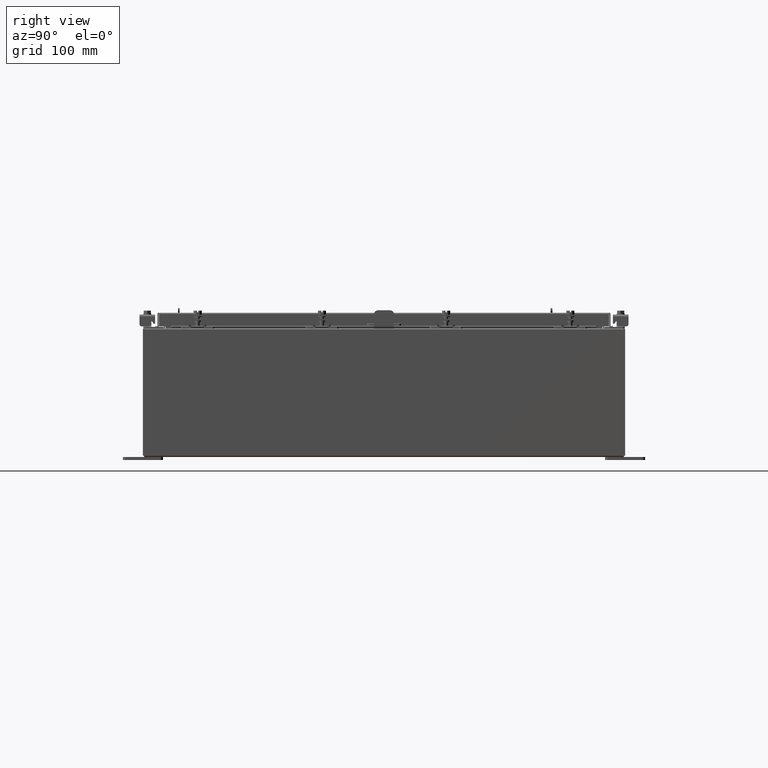
[diagram: clean part render]
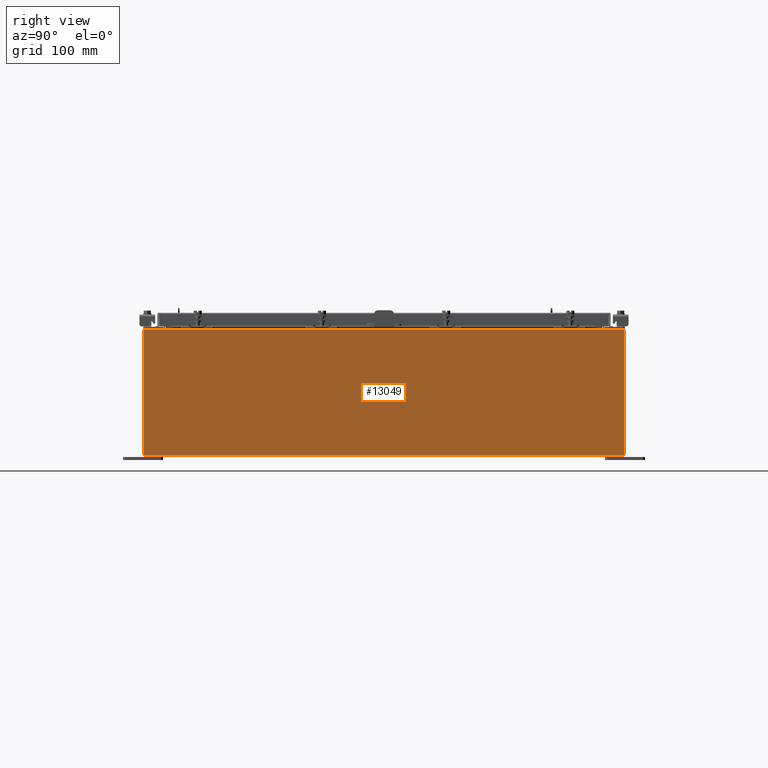
[diagram: same view with one face highlighted and labeled with its STEP entity id]
A machine part, right view. The second image highlights one B-rep face of the part: STEP entity #13049.
In plain terms, the highlighted planar face has unit normal (-1, 0, 0).
Its self-contained STEP definition (entity closure, byte-faithful):
#958 = DIRECTION ( 'NONE',  ( -0.0000000000000000000, -1.000000000000000000, -0.0000000000000000000 ) ) ;
#1259 = LINE ( 'NONE', #14122, #20576 ) ;
#2458 = DIRECTION ( 'NONE',  ( -0.0000000000000000000, -1.000000000000000000, -0.0000000000000000000 ) ) ;
#2667 = VERTEX_POINT ( 'NONE', #21736 ) ;
#2953 = DIRECTION ( 'NONE',  ( 3.584876173029202900E-015, 0.0000000000000000000, 1.000000000000000000 ) ) ;
#3143 = VECTOR ( 'NONE', #2458, 39.37007874015748100 ) ;
#3816 = AXIS2_PLACEMENT_3D ( 'NONE', #16935, #5779, #18837 ) ;
#4072 = VECTOR ( 'NONE', #22351, 39.37007874015748100 ) ;
#4427 = VERTEX_POINT ( 'NONE', #15880 ) ;
#5779 = DIRECTION ( 'NONE',  ( -1.000000000000000000, 0.0000000000000000000, 3.584876173029202900E-015 ) ) ;
#5963 = LINE ( 'NONE', #21457, #10315 ) ;
#6643 = EDGE_CURVE ( 'NONE', #19024, #4427, #5963, .T. ) ;
#8107 = LINE ( 'NONE', #11654, #3143 ) ;
#8578 = ORIENTED_EDGE ( 'NONE', *, *, #15857, .T. ) ;
#9014 = LINE ( 'NONE', #12943, #4072 ) ;
#10315 = VECTOR ( 'NONE', #958, 39.37007874015748100 ) ;
#11631 = EDGE_CURVE ( 'NONE', #18825, #2667, #8107, .T. ) ;
#11654 = CARTESIAN_POINT ( 'NONE',  ( 15.00000000000002800, 14.92530000000000200, 7.837599999999992100 ) ) ;
#11862 = CARTESIAN_POINT ( 'NONE',  ( 15.00000000000002800, 14.92530000000000200, 7.837599999999992100 ) ) ;
#12507 = CARTESIAN_POINT ( 'NONE',  ( 15.00000000000000000, 14.92530000000000000, 0.01299999999999984700 ) ) ;
#12943 = CARTESIAN_POINT ( 'NONE',  ( 15.00000000000000000, -14.92530000000000000, -5.403395625144962700E-014 ) ) ;
#13049 = ADVANCED_FACE ( 'NONE', ( #20928 ), #15050, .F. ) ;
#14122 = CARTESIAN_POINT ( 'NONE',  ( 15.00000000000000000, 14.92530000000000000, -5.403395625144962700E-014 ) ) ;
#15050 = PLANE ( 'NONE',  #3816 ) ;
#15857 = EDGE_CURVE ( 'NONE', #2667, #4427, #9014, .T. ) ;
#15880 = CARTESIAN_POINT ( 'NONE',  ( 15.00000000000000000, -14.92530000000000000, 0.01299999999999983600 ) ) ;
#16935 = CARTESIAN_POINT ( 'NONE',  ( 15.00000000000000000, 0.0000000000000000000, -5.403395625144962700E-014 ) ) ;
#17273 = EDGE_LOOP ( 'NONE', ( #24013, #8578, #19699, #22640 ) ) ;
#18825 = VERTEX_POINT ( 'NONE', #11862 ) ;
#18837 = DIRECTION ( 'NONE',  ( 3.584876173029202900E-015, 0.0000000000000000000, 1.000000000000000000 ) ) ;
#19024 = VERTEX_POINT ( 'NONE', #12507 ) ;
#19699 = ORIENTED_EDGE ( 'NONE', *, *, #6643, .F. ) ;
#20576 = VECTOR ( 'NONE', #2953, 39.37007874015748100 ) ;
#20928 = FACE_OUTER_BOUND ( 'NONE', #17273, .T. ) ;
#21457 = CARTESIAN_POINT ( 'NONE',  ( 15.00000000000000000, -14.92530000000000000, 0.01299999999999984700 ) ) ;
#21736 = CARTESIAN_POINT ( 'NONE',  ( 15.00000000000002800, -14.92530000000000200, 7.837599999999998300 ) ) ;
#22318 = EDGE_CURVE ( 'NONE', #19024, #18825, #1259, .T. ) ;
#22351 = DIRECTION ( 'NONE',  ( -3.584876173029202900E-015, 0.0000000000000000000, -1.000000000000000000 ) ) ;
#22640 = ORIENTED_EDGE ( 'NONE', *, *, #22318, .T. ) ;
#24013 = ORIENTED_EDGE ( 'NONE', *, *, #11631, .T. ) ;